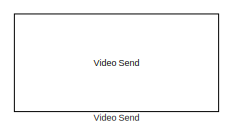
[diagram: root canvas - part 1/7, top left region]
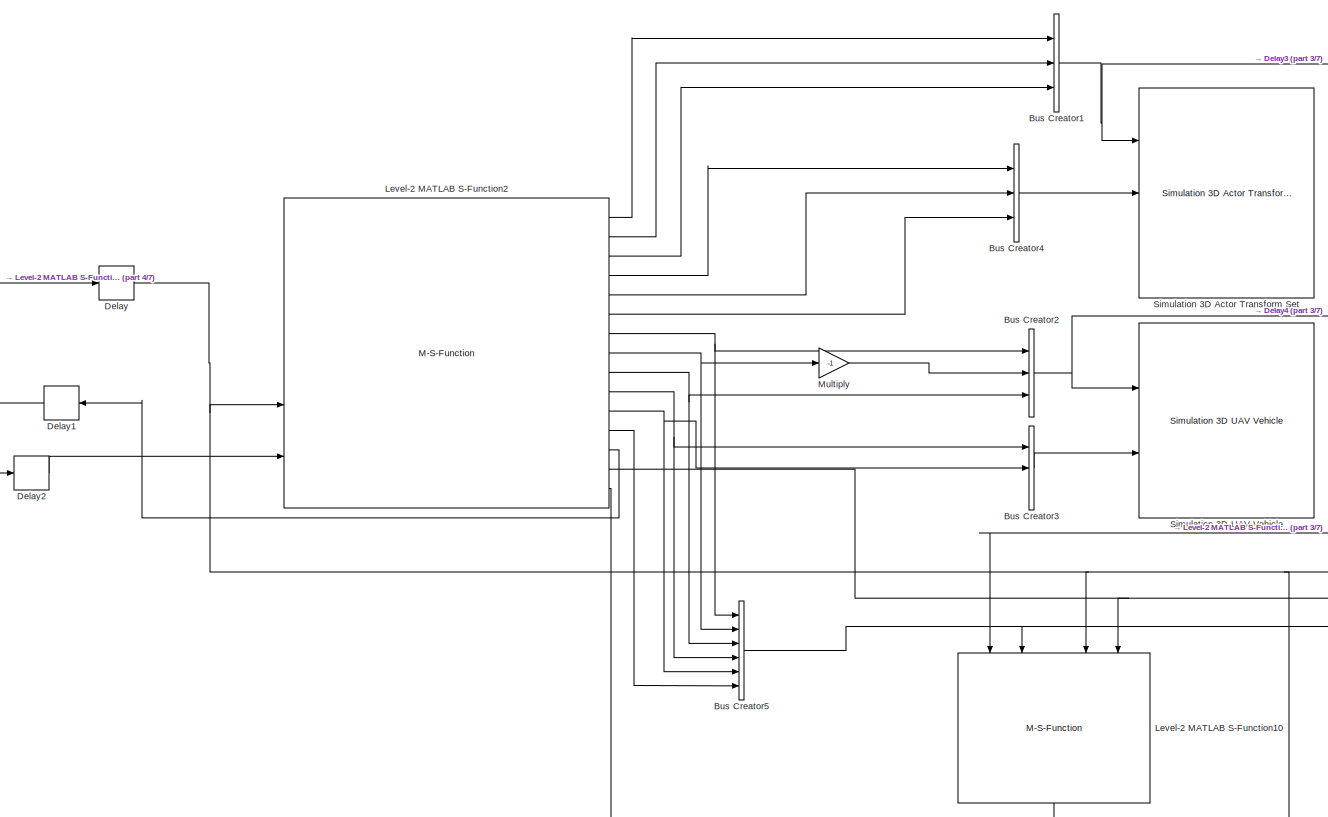
[diagram: root canvas - part 2/7, top left region]
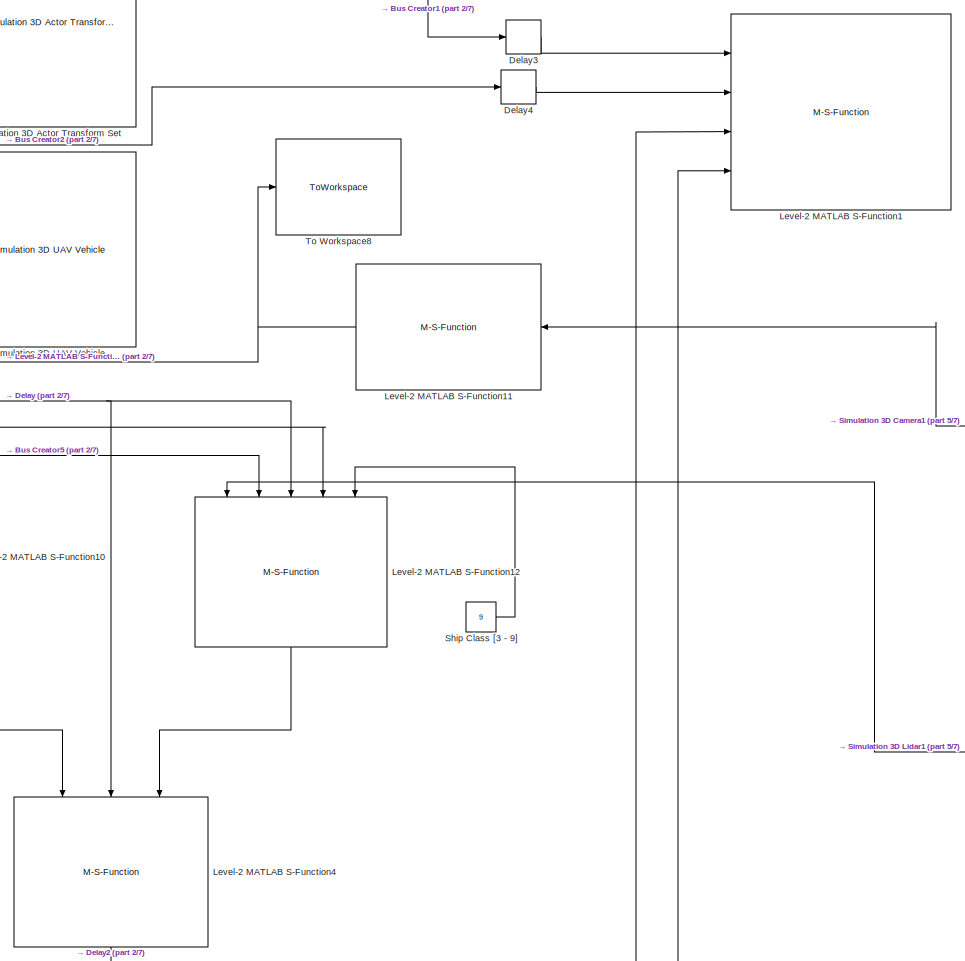
[diagram: root canvas - part 3/7, central region]
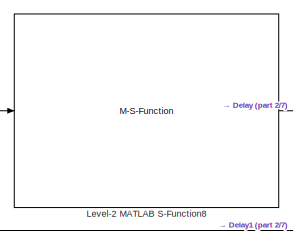
[diagram: root canvas - part 4/7, top left region]
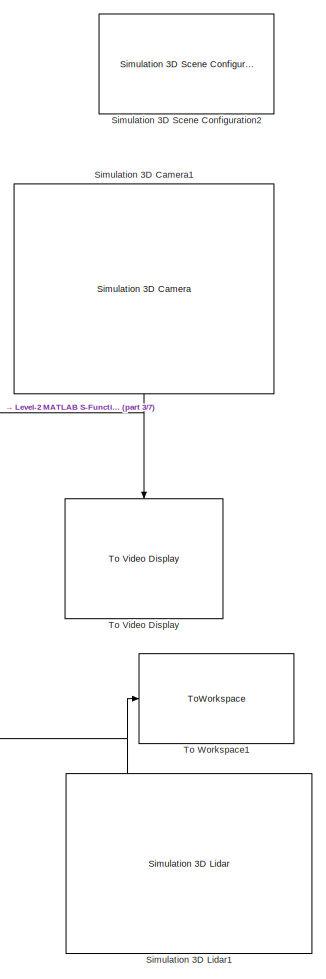
[diagram: root canvas - part 5/7, central region]
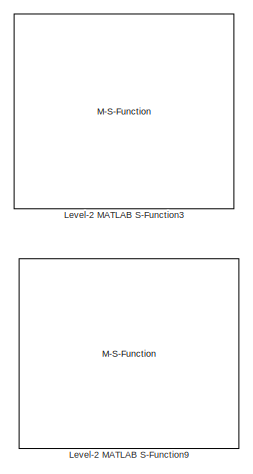
[diagram: root canvas - part 6/7, middle right region]
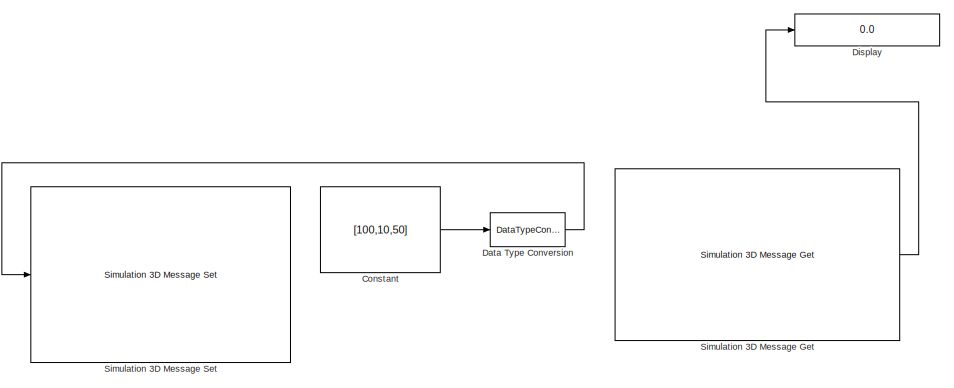
[diagram: root canvas - part 7/7, bottom right region]
MODEL slx_c68edd20a090
KIND model
CONFIG AbsTol = auto
CONFIG EnableMultiTasking = off
CONFIG FixedStep = auto
CONFIG MaxStep = auto
CONFIG MinStep = auto
CONFIG RelTol = 1e-3
CONFIG SampleTimeConstraint = Unconstrained
CONFIG SolverName = VariableStepAuto
CONFIG StartTime = 0.0
CONFIG StopTime = 800
BLOCK [BusCreator] Bus Creator1
  DisplayOption = bar
  InheritFromInputs = on
  Inputs = 3
  Ports = [3, 1]
BLOCK [BusCreator] Bus Creator2
  DisplayOption = bar
  InheritFromInputs = on
  Inputs = 3
  Ports = [3, 1]
BLOCK [BusCreator] Bus Creator3
  DisplayOption = bar
  InheritFromInputs = on
  Inputs = 3
  Ports = [3, 1]
BLOCK [BusCreator] Bus Creator4
  DisplayOption = bar
  InheritFromInputs = on
  Inputs = 3
  Ports = [3, 1]
BLOCK [BusCreator] Bus Creator5
  DisplayOption = bar
  InheritFromInputs = on
  Inputs = 6
  Ports = [6, 1]
BLOCK [Constant] Constant
  Commented = on
  OutDataTypeStr = single
  Value = [100,10,50]
  VectorParams1D = off
BLOCK [DataTypeConversion] Data Type Conversion
  Commented = on
  OutDataTypeStr = single
  RndMeth = Floor
  SaturateOnIntegerOverflow = off
BLOCK [Delay] Delay
  DelayLength = 1
  InitialCondition = 0
  InputPortMap = u0
  Ports = [1, 1]
BLOCK [Delay] Delay1
  DelayLength = 1
  InitialCondition = 0
  InputPortMap = u0
  Ports = [1, 1]
BLOCK [Delay] Delay2
  DelayLength = 1
  InitialCondition = 0
  InputPortMap = u0
  Ports = [1, 1]
BLOCK [Delay] Delay3
  DelayLength = 1
  InitialCondition = 0
  InputPortMap = u0
  Ports = [1, 1]
BLOCK [Delay] Delay4
  DelayLength = 1
  InitialCondition = 0
  InputPortMap = u0
  Ports = [1, 1]
BLOCK [Display] Display
  Commented = on
  Decimation = 1
  Ports = [1]
BLOCK [M-S-Function] Level-2 MATLAB S-Function1
  FunctionName = HazardMapDisplay
  Ports = [4]
  Priority = 1
BLOCK [M-S-Function] Level-2 MATLAB S-Function10
  FunctionName = ImageProcessingSubsystem
  NameLocation = left
  Ports = [5, 1]
  Priority = 1
BLOCK [M-S-Function] Level-2 MATLAB S-Function11
  FunctionName = RGBToGray
  Ports = [1, 1]
  Priority = 1
BLOCK [M-S-Function] Level-2 MATLAB S-Function12
  FunctionName = LidarProcessingSubsystem
  NameLocation = left
  Ports = [5, 1]
  Priority = 1
BLOCK [M-S-Function] Level-2 MATLAB S-Function2
  FunctionName = PathPlanSubsystem
  Ports = [5, 15]
  Priority = 1
BLOCK [M-S-Function] Level-2 MATLAB S-Function3
  Commented = on
  FunctionName = UnrealToWorldTransform
  Ports = [2, 1]
  Priority = 1
BLOCK [M-S-Function] Level-2 MATLAB S-Function4
  FunctionName = DataFusionSubsystem
  NameLocation = left
  Ports = [3, 1]
  Priority = 1
BLOCK [M-S-Function] Level-2 MATLAB S-Function8
  FunctionName = SimulationControl
  Ports = [1, 1]
  Priority = 1
BLOCK [M-S-Function] Level-2 MATLAB S-Function9
  Commented = on
  FunctionName = ImageProcessingSubsystem
  Ports = [3, 6]
  Priority = 1
BLOCK [Gain] Multiply
  Gain = -1
BLOCK [Constant] Ship Class [3 - 9]
  Value = 9
BLOCK [Reference] Simulation 3D Actor Transform Set  REF=sim3dlib/Simulation 3D Actor Transform Set
  Ports = [3]
  Priority = 2
  SourceBlock = sim3dlib/Simulation 3D Actor Transform Set
  SourceProductBaseCode = VE,AE,DR,UV,VE
  SourceType = Simulation 3D Actor Transform Set
BLOCK [Reference] Simulation 3D Camera1  REF=sim3dcameralib/Simulation 3D Camera
  NameLocation = left
  Ports = [0, 1]
  Priority = 1
  SourceBlock = sim3dcameralib/Simulation 3D Camera
  SourceProductBaseCode = VE,AE,DR,UV,VE
  SourceType = Simulation 3D Camera
BLOCK [Reference] Simulation 3D Lidar1  REF=sim3dphyssensorlib/Simulation 3D Lidar
  NameLocation = right
  Ports = [0, 3]
  Priority = 1
  SourceBlock = sim3dphyssensorlib/Simulation 3D Lidar
  SourceProductBaseCode = VE,AE,DR,UV,VE
  SourceType = Simulation 3D Lidar
BLOCK [Reference] Simulation 3D Message Get  REF=sim3dlib/Simulation 3D Message Get
  Commented = on
  Ports = [0, 1]
  Priority = 1
  SourceBlock = sim3dlib/Simulation 3D Message Get
  SourceProductBaseCode = VE,AE,DR,UV,VE
  SourceType = Simulation 3D Message Get
BLOCK [Reference] Simulation 3D Message Set  REF=sim3dlib/Simulation 3D Message Set
  Commented = on
  Ports = [1]
  Priority = -1
  SourceBlock = sim3dlib/Simulation 3D Message Set
  SourceProductBaseCode = VE,AE,DR,UV,VE
  SourceType = Simulation 3D Message Set
BLOCK [Reference] Simulation 3D Scene Configuration2  REF=sim3dlib/Simulation 3D Scene Configuration
  Ports = []
  Priority = 1
  SourceBlock = sim3dlib/Simulation 3D Scene Configuration
  SourceProductBaseCode = VE,AE,DR,UV,VE
  SourceType = Simulation 3D Scene Configuration
BLOCK [Reference] Simulation 3D UAV Vehicle  REF=uavsim3dlib/Simulation 3D UAV Vehicle
  Ports = [2]
  Priority = 2
  SourceBlock = uavsim3dlib/Simulation 3D UAV Vehicle
  SourceProductBaseCode = UV
  SourceType = Simulation 3D UAV Vehicle
BLOCK [Reference] To Video Display  REF=visionsinks/To Video Display
  NameLocation = left
  Ports = [1]
  SourceBlock = visionsinks/To Video Display
  SourceProductBaseCode = VP
  SourceType = To Video Display
BLOCK [ToWorkspace] To Workspace1
  Commented = on
  FixptAsFi = on
  MaxDataPoints = inf
  Ports = [1]
  SampleTime = -1
  SaveFormat = Timeseries
  VariableName = pCloud
BLOCK [ToWorkspace] To Workspace8
  Commented = on
  FixptAsFi = on
  MaxDataPoints = inf
  Ports = [1]
  SampleTime = -1
  SaveFormat = Timeseries
  VariableName = image
BLOCK [Reference] Video Send  REF=uavsim3dlib/Video Send
  Commented = on
  Ports = [1]
  SourceBlock = uavsim3dlib/Video Send
  SourceProductBaseCode = UV
  SourceType = uav.sluav.internal.system.VideoSend
NET Bus Creator1:1 -> Delay3:1, Simulation 3D Actor Transform Set:1
NET Bus Creator2:1 -> Delay4:1, Simulation 3D UAV Vehicle:1
LINE Bus Creator3:1 -> Simulation 3D UAV Vehicle:2
LINE Bus Creator4:1 -> Simulation 3D Actor Transform Set:2
NET Bus Creator5:1 -> Level-2 MATLAB S-Function10:2, Level-2 MATLAB S-Function12:2
LINE Constant:1 -> Data Type Conversion:1
LINE Data Type Conversion:1 -> Simulation 3D Message Set:1
LINE Delay1:1 -> Level-2 MATLAB S-Function8:1
LINE Delay2:1 -> Level-2 MATLAB S-Function2:5
LINE Delay3:1 -> Level-2 MATLAB S-Function1:1
LINE Delay4:1 -> Level-2 MATLAB S-Function1:2
NET Delay:1 -> Level-2 MATLAB S-Function10:4, Level-2 MATLAB S-Function12:3, Level-2 MATLAB S-Function2:4, Level-2 MATLAB S-Function4:2
LINE Level-2 MATLAB S-Function10:1 -> Level-2 MATLAB S-Function4:1
NET Level-2 MATLAB S-Function11:1 -> Level-2 MATLAB S-Function10:1, To Workspace8:1
LINE Level-2 MATLAB S-Function12:1 -> Level-2 MATLAB S-Function4:3
LINE Level-2 MATLAB S-Function2:1 -> Bus Creator1:1
NET Level-2 MATLAB S-Function2:10 -> Bus Creator3:1, Bus Creator5:4
NET Level-2 MATLAB S-Function2:11 -> Bus Creator3:2, Bus Creator5:5
LINE Level-2 MATLAB S-Function2:12 -> Bus Creator5:6
LINE Level-2 MATLAB S-Function2:13 -> Delay1:1
NET Level-2 MATLAB S-Function2:14 -> Level-2 MATLAB S-Function10:5, Level-2 MATLAB S-Function12:4
LINE Level-2 MATLAB S-Function2:15 -> Level-2 MATLAB S-Function1:4
LINE Level-2 MATLAB S-Function2:2 -> Bus Creator1:2
LINE Level-2 MATLAB S-Function2:3 -> Bus Creator1:3
LINE Level-2 MATLAB S-Function2:4 -> Bus Creator4:1
LINE Level-2 MATLAB S-Function2:5 -> Bus Creator4:2
LINE Level-2 MATLAB S-Function2:6 -> Bus Creator4:3
NET Level-2 MATLAB S-Function2:7 -> Bus Creator2:1, Bus Creator5:1
NET Level-2 MATLAB S-Function2:8 -> Bus Creator5:2, Multiply:1
NET Level-2 MATLAB S-Function2:9 -> Bus Creator2:3, Bus Creator5:3
NET Level-2 MATLAB S-Function4:1 -> Delay2:1, Level-2 MATLAB S-Function1:3
LINE Level-2 MATLAB S-Function8:1 -> Delay:1
LINE Multiply:1 -> Bus Creator2:2
LINE Ship Class [3 - 9]:1 -> Level-2 MATLAB S-Function12:5
NET Simulation 3D Camera1:1 -> Level-2 MATLAB S-Function11:1, To Video Display:1
NET Simulation 3D Lidar1:1 -> Level-2 MATLAB S-Function12:1, To Workspace1:1
LINE Simulation 3D Message Get:1 -> Display:1
note: NET lines group one-source signal fan-out (src -> all destinations, sorted); 1:1 wires keep LINE
